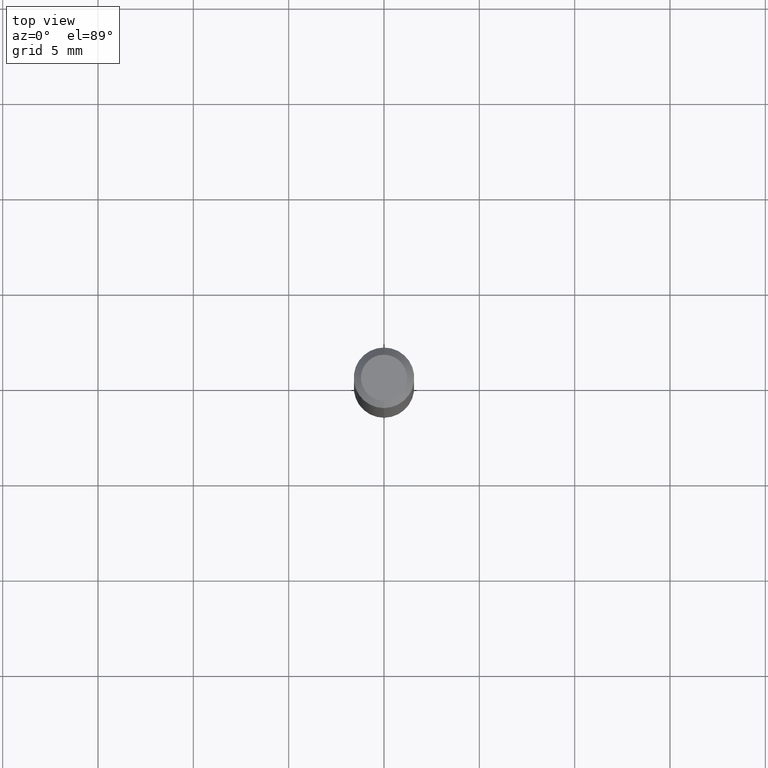
[diagram: clean part render]
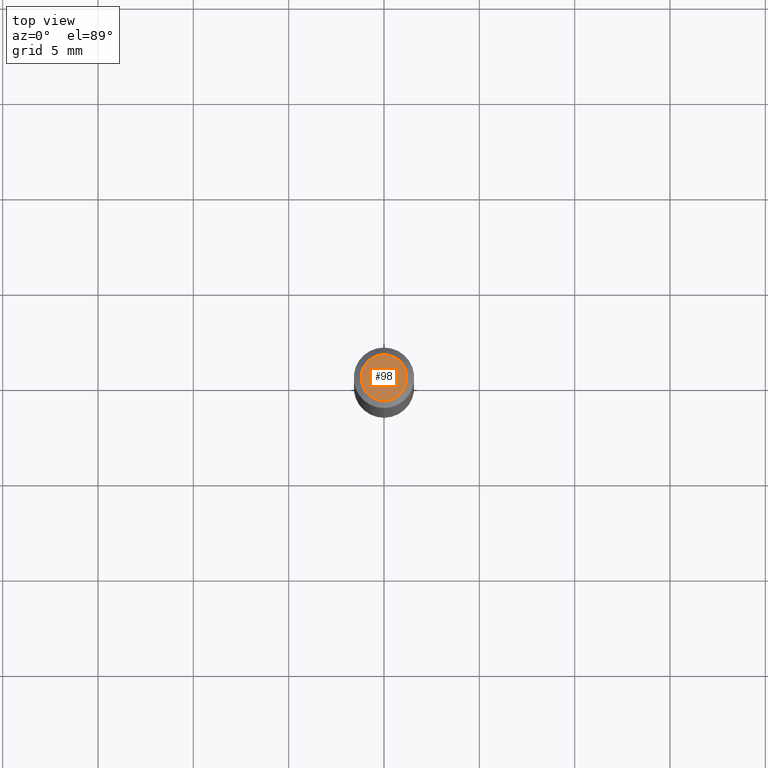
[diagram: same view with one face highlighted and labeled with its STEP entity id]
A machine part, top view. The second image highlights one B-rep face of the part: STEP entity #98.
In plain terms, the highlighted planar face has unit normal (0, -0, -1).
Its self-contained STEP definition (entity closure, byte-faithful):
#2 = VERTEX_POINT ( 'NONE', #218 ) ;
#20 = DIRECTION ( 'NONE',  ( -6.982962677686266711E-15, -1.000000000000000000, 3.494325780197032699E-15 ) ) ;
#48 = EDGE_CURVE ( 'NONE', #122, #2, #487, .T. ) ;
#71 = ORIENTED_EDGE ( 'NONE', *, *, #384, .T. ) ;
#90 = FACE_OUTER_BOUND ( 'NONE', #489, .T. ) ;
#98 = ADVANCED_FACE ( 'NONE', ( #90 ), #257, .F. ) ;
#122 = VERTEX_POINT ( 'NONE', #346 ) ;
#126 = DIRECTION ( 'NONE',  ( -6.982962677686266711E-15, -1.000000000000000000, 3.494325780197032699E-15 ) ) ;
#130 = CARTESIAN_POINT ( 'NONE',  ( 7.032049533106805052E-46, -1.005625026357988639E-31, -2.877879996355934368E-17 ) ) ;
#156 = AXIS2_PLACEMENT_3D ( 'NONE', #511, #427, #20 ) ;
#165 = DIRECTION ( 'NONE',  ( -2.443482543403829974E-29, 3.494325780197033093E-15, 1.000000000000000000 ) ) ;
#202 = AXIS2_PLACEMENT_3D ( 'NONE', #130, #165, #126 ) ;
#218 = CARTESIAN_POINT ( 'NONE',  ( -3.773273898774340269E-16, -0.04749999999999999362, 1.372016745957997122E-16 ) ) ;
#244 = ORIENTED_EDGE ( 'NONE', *, *, #48, .T. ) ;
#257 = PLANE ( 'NONE',  #272 ) ;
#272 = AXIS2_PLACEMENT_3D ( 'NONE', #342, #430, #381 ) ;
#342 = CARTESIAN_POINT ( 'NONE',  ( 3.316907271900976096E-16, 0.04749999999999999362, -1.803698745411387246E-16 ) ) ;
#346 = CARTESIAN_POINT ( 'NONE',  ( 3.840629472727447874E-16, 0.04749999999999999362, -1.947592745229183872E-16 ) ) ;
#381 = DIRECTION ( 'NONE',  ( 6.982962677686265922E-15, 1.000000000000000000, -3.494325780197033487E-15 ) ) ;
#384 = EDGE_CURVE ( 'NONE', #2, #122, #397, .T. ) ;
#397 = CIRCLE ( 'NONE', #202, 0.04749999999999999362 ) ;
#427 = DIRECTION ( 'NONE',  ( -2.443482543403829974E-29, 3.494325780197033093E-15, 1.000000000000000000 ) ) ;
#430 = DIRECTION ( 'NONE',  ( 2.443482543403829694E-29, -3.494325780197033487E-15, -1.000000000000000000 ) ) ;
#487 = CIRCLE ( 'NONE', #156, 0.04749999999999999362 ) ;
#489 = EDGE_LOOP ( 'NONE', ( #244, #71 ) ) ;
#511 = CARTESIAN_POINT ( 'NONE',  ( 7.032049533106805052E-46, -1.005625026357988639E-31, -2.877879996355934368E-17 ) ) ;